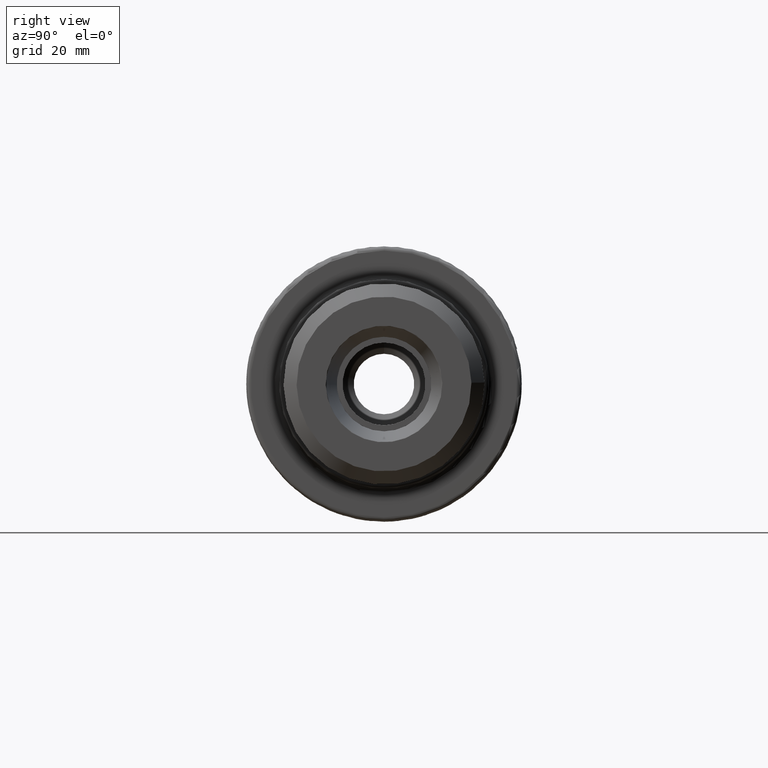
[diagram: clean part render]
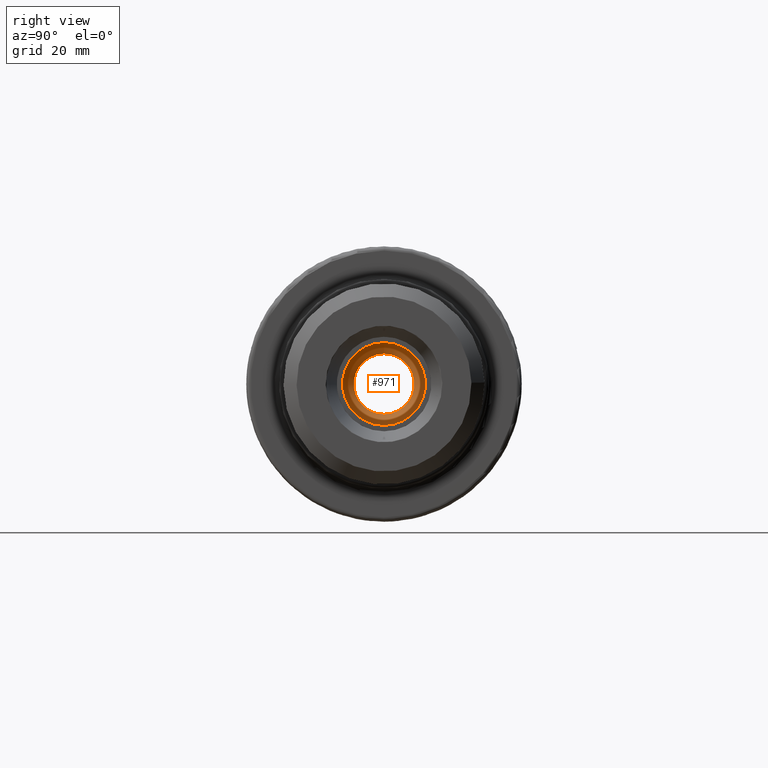
[diagram: same view with one face highlighted and labeled with its STEP entity id]
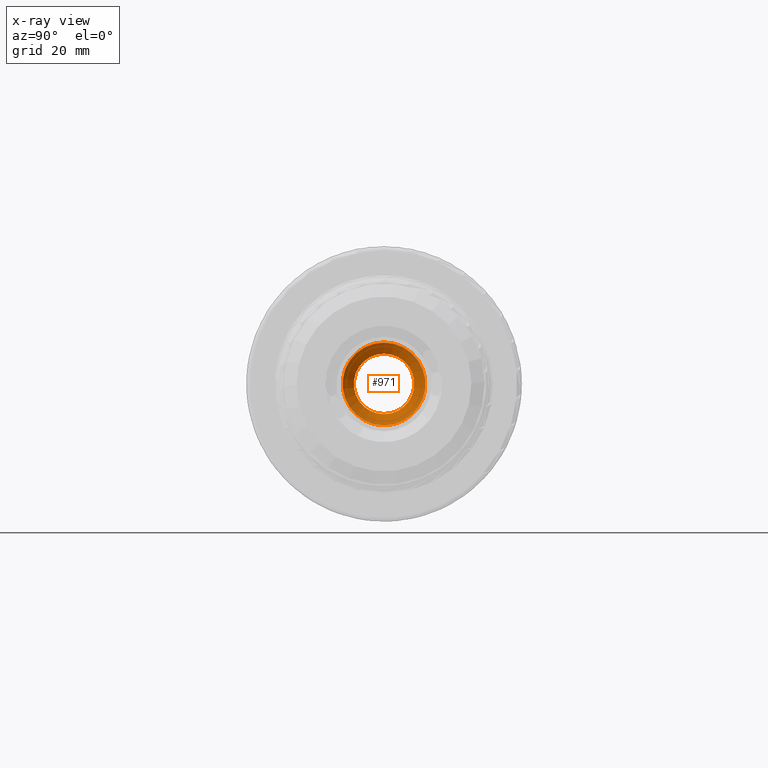
[diagram: x-ray of the same camera — body ghosted, the highlighted face saturated]
A machine part, right view. The second image highlights one B-rep face of the part: STEP entity #971.
The next image is the same camera in x-ray: the body ghosted, the highlighted face saturated — about 0% of this face is hidden behind the body in this view.
In plain terms, the highlighted conical surface has half-angle 59 deg.
Its self-contained STEP definition (entity closure, byte-faithful):
#57=CONICAL_SURFACE('',#1129,4.73075,1.02974425867665);
#106=LINE('',#1625,#157);
#157=VECTOR('',#1316,4.73075);
#234=FACE_OUTER_BOUND('',#300,.T.);
#300=EDGE_LOOP('',(#717,#718,#719,#720,#721));
#373=CIRCLE('',#1128,9.4615);
#374=CIRCLE('',#1130,6.9175);
#375=CIRCLE('',#1131,6.9175);
#443=VERTEX_POINT('',#1620);
#444=VERTEX_POINT('',#1624);
#445=VERTEX_POINT('',#1626);
#546=EDGE_CURVE('',#443,#443,#373,.T.);
#547=EDGE_CURVE('',#443,#444,#106,.T.);
#548=EDGE_CURVE('',#445,#444,#374,.T.);
#549=EDGE_CURVE('',#444,#445,#375,.T.);
#717=ORIENTED_EDGE('',*,*,#546,.T.);
#718=ORIENTED_EDGE('',*,*,#547,.T.);
#719=ORIENTED_EDGE('',*,*,#548,.F.);
#720=ORIENTED_EDGE('',*,*,#549,.F.);
#721=ORIENTED_EDGE('',*,*,#547,.F.);
#971=ADVANCED_FACE('',(#234),#57,.F.);
#1128=AXIS2_PLACEMENT_3D('',#1622,#1312,#1313);
#1129=AXIS2_PLACEMENT_3D('',#1623,#1314,#1315);
#1130=AXIS2_PLACEMENT_3D('',#1627,#1317,#1318);
#1131=AXIS2_PLACEMENT_3D('',#1628,#1319,#1320);
#1312=DIRECTION('center_axis',(1.,0.,0.));
#1313=DIRECTION('ref_axis',(0.,0.,-1.));
#1314=DIRECTION('center_axis',(1.,0.,0.));
#1315=DIRECTION('ref_axis',(0.,0.,-1.));
#1316=DIRECTION('',(-0.515038074910054,1.04972719113862E-16,-0.857167300702112));
#1317=DIRECTION('center_axis',(1.,0.,0.));
#1318=DIRECTION('ref_axis',(0.,0.,1.));
#1319=DIRECTION('center_axis',(1.,0.,0.));
#1320=DIRECTION('ref_axis',(0.,0.,1.));
#1620=CARTESIAN_POINT('',(-30.5,-1.15869956901327E-15,9.4615));
#1622=CARTESIAN_POINT('Origin',(-30.5,0.,0.));
#1623=CARTESIAN_POINT('Origin',(-33.3425213734646,0.,0.));
#1624=CARTESIAN_POINT('',(-32.0285894148061,-8.47149423310182E-16,6.9175));
#1625=CARTESIAN_POINT('',(-33.3425213734646,-5.79349784506634E-16,4.73075));
#1626=CARTESIAN_POINT('',(-32.0285894148061,8.47149423310182E-16,-6.9175));
#1627=CARTESIAN_POINT('Origin',(-32.0285894148061,0.,0.));
#1628=CARTESIAN_POINT('Origin',(-32.0285894148061,0.,0.));